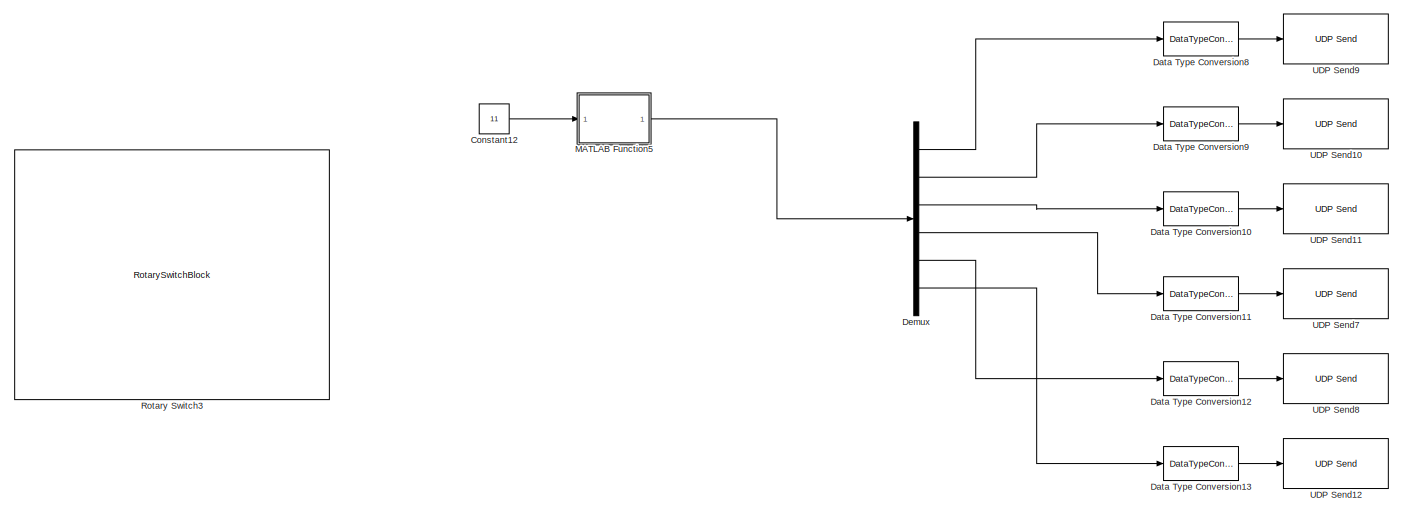
[diagram: root canvas - part 1/4, full width, top band]
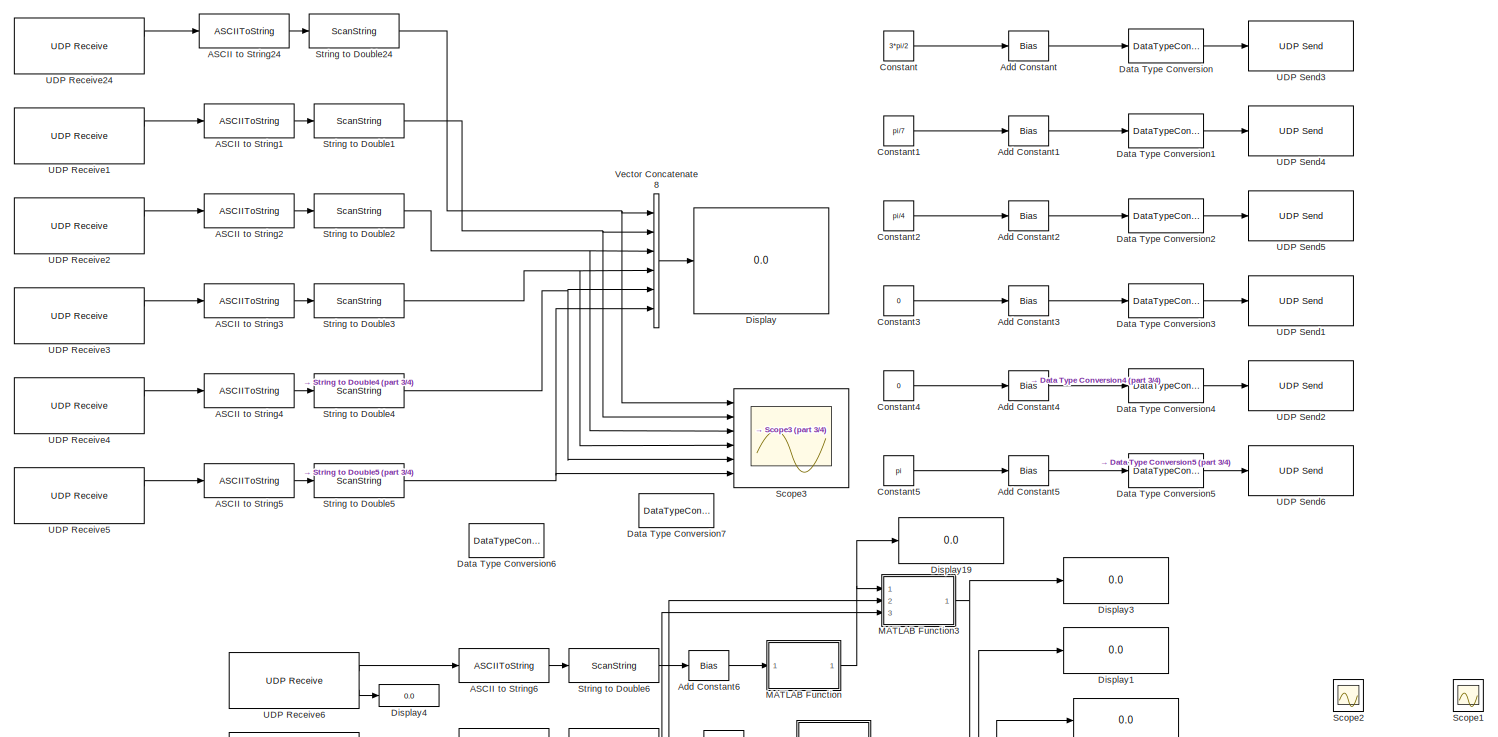
[diagram: root canvas - part 2/4, full width, middle band]
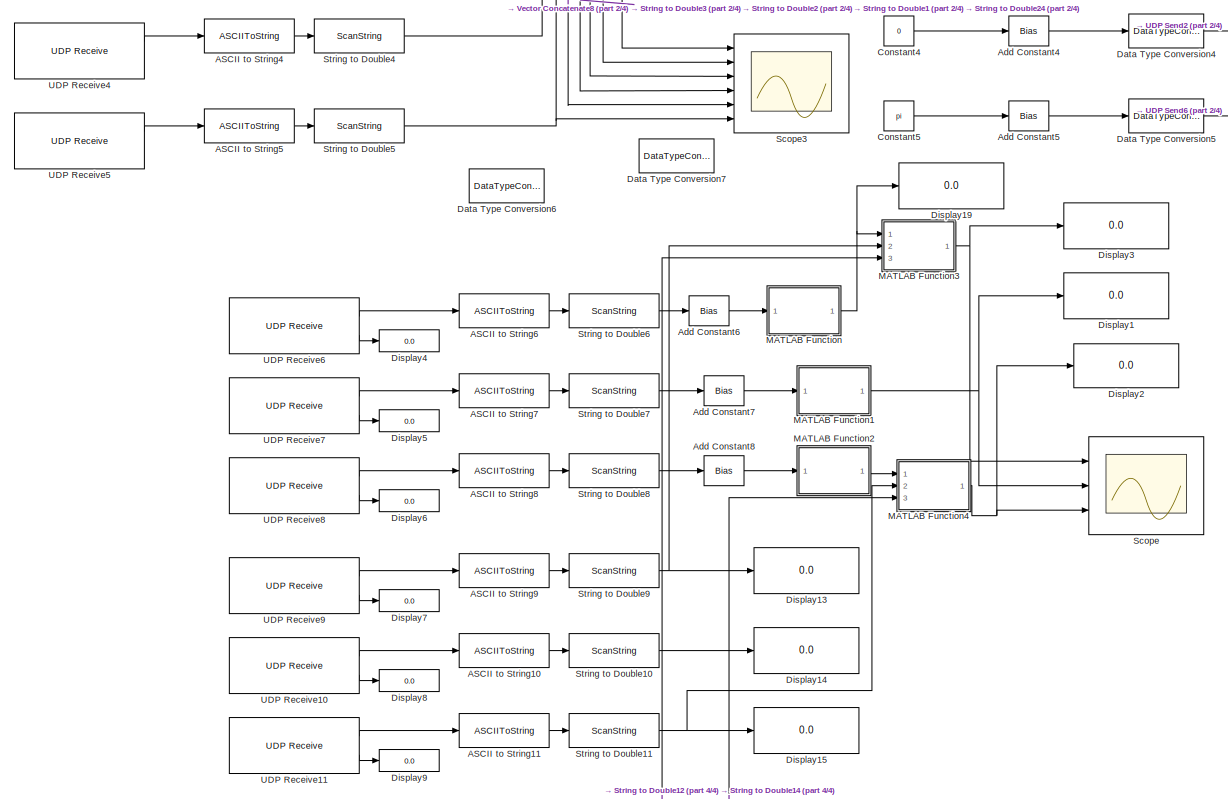
[diagram: root canvas - part 3/4, full width, middle band]
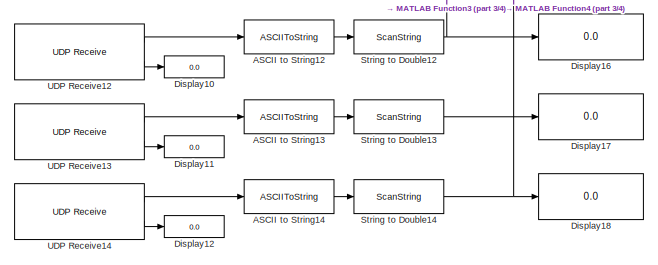
[diagram: root canvas - part 4/4, bottom center region]
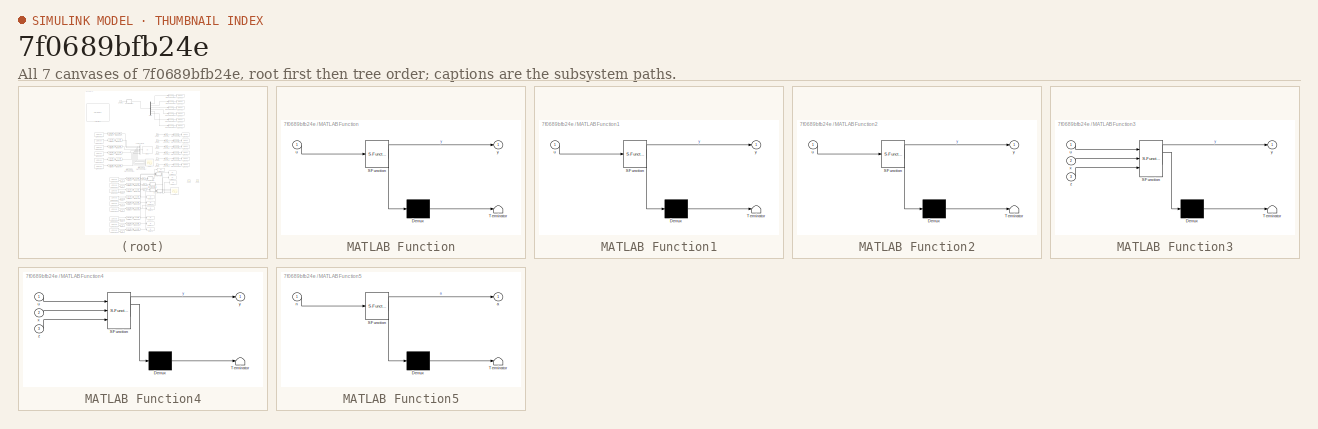
[diagram: thumbnail index - all 7 canvases of the model, root first then tree order]
MODEL slx_7f0689bfb24e
KIND model
CONFIG AbsTol = auto
CONFIG EnableMultiTasking = off
CONFIG FixedStep = auto
CONFIG MaxStep = auto
CONFIG MinStep = auto
CONFIG RelTol = 1e-3
CONFIG SampleTimeConstraint = Unconstrained
CONFIG Solver = VariableStepAuto
CONFIG SolverName = VariableStepAuto
CONFIG StartTime = 0.0
CONFIG StopTime = inf
BLOCK [ASCIIToString] ASCII to String1
BLOCK [ASCIIToString] ASCII to String10
BLOCK [ASCIIToString] ASCII to String11
BLOCK [ASCIIToString] ASCII to String12
BLOCK [ASCIIToString] ASCII to String13
BLOCK [ASCIIToString] ASCII to String14
BLOCK [ASCIIToString] ASCII to String2
BLOCK [ASCIIToString] ASCII to String24
BLOCK [ASCIIToString] ASCII to String3
BLOCK [ASCIIToString] ASCII to String4
BLOCK [ASCIIToString] ASCII to String5
BLOCK [ASCIIToString] ASCII to String6
BLOCK [ASCIIToString] ASCII to String7
BLOCK [ASCIIToString] ASCII to String8
BLOCK [ASCIIToString] ASCII to String9
BLOCK [Bias] Add Constant
  Commented = on
  SaturateOnIntegerOverflow = off
BLOCK [Bias] Add Constant1
  Commented = on
  SaturateOnIntegerOverflow = off
BLOCK [Bias] Add Constant2
  Commented = on
  SaturateOnIntegerOverflow = off
BLOCK [Bias] Add Constant3
  Commented = on
  SaturateOnIntegerOverflow = off
BLOCK [Bias] Add Constant4
  Commented = on
  SaturateOnIntegerOverflow = off
BLOCK [Bias] Add Constant5
  Commented = on
  SaturateOnIntegerOverflow = off
BLOCK [Bias] Add Constant6
  SaturateOnIntegerOverflow = off
BLOCK [Bias] Add Constant7
  SaturateOnIntegerOverflow = off
BLOCK [Bias] Add Constant8
  SaturateOnIntegerOverflow = off
BLOCK [Constant] Constant
  Commented = on
  Value = 3*pi/2
BLOCK [Constant] Constant1
  Commented = on
  Value = pi/7
BLOCK [Constant] Constant12
  Value = 11
BLOCK [Constant] Constant2
  Commented = on
  Value = pi/4
BLOCK [Constant] Constant3
  Commented = on
  Value = 0
BLOCK [Constant] Constant4
  Commented = on
  Value = 0
BLOCK [Constant] Constant5
  Commented = on
  Value = pi
BLOCK [DataTypeConversion] Data Type Conversion
  Commented = on
  ConvertRealWorld = Stored Integer (SI)
  OutDataTypeStr = double
  RndMeth = Floor
  SaturateOnIntegerOverflow = off
BLOCK [DataTypeConversion] Data Type Conversion1
  Commented = on
  ConvertRealWorld = Stored Integer (SI)
  OutDataTypeStr = double
  RndMeth = Floor
  SaturateOnIntegerOverflow = off
BLOCK [DataTypeConversion] Data Type Conversion10
  ConvertRealWorld = Stored Integer (SI)
  OutDataTypeStr = double
  RndMeth = Floor
  SaturateOnIntegerOverflow = off
BLOCK [DataTypeConversion] Data Type Conversion11
  ConvertRealWorld = Stored Integer (SI)
  OutDataTypeStr = double
  RndMeth = Floor
  SaturateOnIntegerOverflow = off
BLOCK [DataTypeConversion] Data Type Conversion12
  ConvertRealWorld = Stored Integer (SI)
  OutDataTypeStr = double
  RndMeth = Floor
  SaturateOnIntegerOverflow = off
BLOCK [DataTypeConversion] Data Type Conversion13
  ConvertRealWorld = Stored Integer (SI)
  OutDataTypeStr = double
  RndMeth = Floor
  SaturateOnIntegerOverflow = off
BLOCK [DataTypeConversion] Data Type Conversion2
  Commented = on
  ConvertRealWorld = Stored Integer (SI)
  OutDataTypeStr = double
  RndMeth = Floor
  SaturateOnIntegerOverflow = off
BLOCK [DataTypeConversion] Data Type Conversion3
  Commented = on
  ConvertRealWorld = Stored Integer (SI)
  OutDataTypeStr = double
  RndMeth = Floor
  SaturateOnIntegerOverflow = off
BLOCK [DataTypeConversion] Data Type Conversion4
  Commented = on
  ConvertRealWorld = Stored Integer (SI)
  OutDataTypeStr = double
  RndMeth = Floor
  SaturateOnIntegerOverflow = off
BLOCK [DataTypeConversion] Data Type Conversion5
  Commented = on
  ConvertRealWorld = Stored Integer (SI)
  OutDataTypeStr = double
  RndMeth = Floor
  SaturateOnIntegerOverflow = off
BLOCK [DataTypeConversion] Data Type Conversion6
  OutDataTypeStr = double
  RndMeth = Round
  SaturateOnIntegerOverflow = off
BLOCK [DataTypeConversion] Data Type Conversion7
  ConvertRealWorld = Stored Integer (SI)
  OutDataTypeStr = double
  RndMeth = Floor
  SaturateOnIntegerOverflow = off
BLOCK [DataTypeConversion] Data Type Conversion8
  ConvertRealWorld = Stored Integer (SI)
  OutDataTypeStr = double
  RndMeth = Floor
  SaturateOnIntegerOverflow = off
BLOCK [DataTypeConversion] Data Type Conversion9
  ConvertRealWorld = Stored Integer (SI)
  OutDataTypeStr = double
  RndMeth = Floor
  SaturateOnIntegerOverflow = off
BLOCK [Demux] Demux
  Outputs = 6
  Ports = [1, 6]
BLOCK [Display] Display
  Decimation = 1
  Ports = [1]
BLOCK [Display] Display1
  Decimation = 1
  Ports = [1]
BLOCK [Display] Display10
  Decimation = 1
  Format = bank
  Ports = [1]
BLOCK [Display] Display11
  Decimation = 1
  Format = bank
  Ports = [1]
BLOCK [Display] Display12
  Decimation = 1
  Format = bank
  Ports = [1]
BLOCK [Display] Display13
  Decimation = 1
  Ports = [1]
BLOCK [Display] Display14
  Decimation = 1
  Ports = [1]
BLOCK [Display] Display15
  Decimation = 1
  Ports = [1]
BLOCK [Display] Display16
  Decimation = 1
  Ports = [1]
BLOCK [Display] Display17
  Decimation = 1
  Ports = [1]
BLOCK [Display] Display18
  Decimation = 1
  Ports = [1]
BLOCK [Display] Display19
  Decimation = 1
  Ports = [1]
BLOCK [Display] Display2
  Decimation = 1
  Ports = [1]
BLOCK [Display] Display3
  Decimation = 1
  Ports = [1]
BLOCK [Display] Display4
  Decimation = 1
  Format = bank
  Ports = [1]
BLOCK [Display] Display5
  Decimation = 1
  Format = bank
  Ports = [1]
BLOCK [Display] Display6
  Decimation = 1
  Format = bank
  Ports = [1]
BLOCK [Display] Display7
  Decimation = 1
  Format = bank
  Ports = [1]
BLOCK [Display] Display8
  Decimation = 1
  Format = bank
  Ports = [1]
BLOCK [Display] Display9
  Decimation = 1
  Format = bank
  Ports = [1]
BLOCK [SubSystem] MATLAB Function
  ErrorFcn = Stateflow.Translate.translate
  PermitHierarchicalResolution = ExplicitOnly
  Ports = [1, 1]
  RequestExecContextInheritance = off
  SFBlockType = MATLAB Function
  TreatAsAtomicUnit = on
BLOCK [Demux] MATLAB Function/ Demux 
  Outputs = 1
  Ports = [1, 1]
BLOCK [S-Function] MATLAB Function/ SFunction 
  EnableBusSupport = on
  FunctionName = sf_sfun
  PortCounts = [1 2]
  Ports = [1, 2]
  SFcnIsStateOwnerBlock = off
  SFunctionDeploymentMode = off
  Tag = Stateflow S-Function 2
BLOCK [Terminator] MATLAB Function/ Terminator 
BLOCK [Inport] MATLAB Function/u
BLOCK [Outport] MATLAB Function/y
BLOCK [SubSystem] MATLAB Function1
  ErrorFcn = Stateflow.Translate.translate
  PermitHierarchicalResolution = ExplicitOnly
  Ports = [1, 1]
  RequestExecContextInheritance = off
  SFBlockType = MATLAB Function
  TreatAsAtomicUnit = on
BLOCK [Demux] MATLAB Function1/ Demux 
  Outputs = 1
  Ports = [1, 1]
BLOCK [S-Function] MATLAB Function1/ SFunction 
  EnableBusSupport = on
  FunctionName = sf_sfun
  PortCounts = [1 2]
  Ports = [1, 2]
  SFcnIsStateOwnerBlock = off
  SFunctionDeploymentMode = off
  Tag = Stateflow S-Function 1
BLOCK [Terminator] MATLAB Function1/ Terminator 
BLOCK [Inport] MATLAB Function1/u
BLOCK [Outport] MATLAB Function1/y
BLOCK [SubSystem] MATLAB Function2
  ErrorFcn = Stateflow.Translate.translate
  PermitHierarchicalResolution = ExplicitOnly
  Ports = [1, 1]
  RequestExecContextInheritance = off
  SFBlockType = MATLAB Function
  TreatAsAtomicUnit = on
BLOCK [Demux] MATLAB Function2/ Demux 
  Outputs = 1
  Ports = [1, 1]
BLOCK [S-Function] MATLAB Function2/ SFunction 
  EnableBusSupport = on
  FunctionName = sf_sfun
  PortCounts = [1 2]
  Ports = [1, 2]
  SFcnIsStateOwnerBlock = off
  SFunctionDeploymentMode = off
  Tag = Stateflow S-Function 3
BLOCK [Terminator] MATLAB Function2/ Terminator 
BLOCK [Inport] MATLAB Function2/u
BLOCK [Outport] MATLAB Function2/y
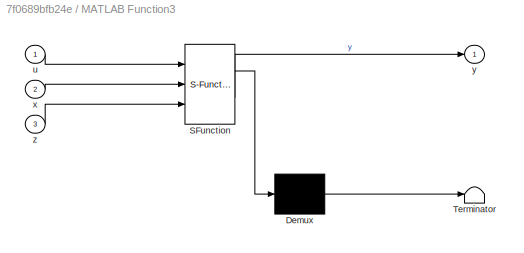
BLOCK [SubSystem] MATLAB Function3
  ErrorFcn = Stateflow.Translate.translate
  PermitHierarchicalResolution = ExplicitOnly
  Ports = [3, 1]
  RequestExecContextInheritance = off
  SFBlockType = MATLAB Function
  TreatAsAtomicUnit = on
BLOCK [Demux] MATLAB Function3/ Demux 
  Outputs = 1
  Ports = [1, 1]
BLOCK [S-Function] MATLAB Function3/ SFunction 
  EnableBusSupport = on
  FunctionName = sf_sfun
  PortCounts = [3 2]
  Ports = [3, 2]
  SFcnIsStateOwnerBlock = off
  SFunctionDeploymentMode = off
  Tag = Stateflow S-Function 4
BLOCK [Terminator] MATLAB Function3/ Terminator 
BLOCK [Inport] MATLAB Function3/u
BLOCK [Inport] MATLAB Function3/x
  Port = 2
BLOCK [Outport] MATLAB Function3/y
BLOCK [Inport] MATLAB Function3/z
  Port = 3
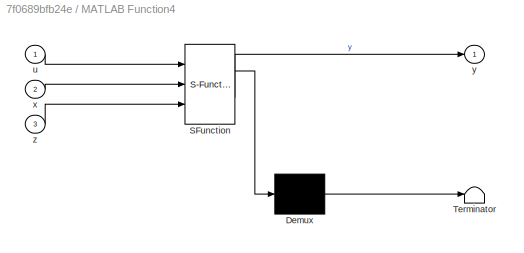
BLOCK [SubSystem] MATLAB Function4
  ErrorFcn = Stateflow.Translate.translate
  PermitHierarchicalResolution = ExplicitOnly
  Ports = [3, 1]
  RequestExecContextInheritance = off
  SFBlockType = MATLAB Function
  TreatAsAtomicUnit = on
BLOCK [Demux] MATLAB Function4/ Demux 
  Outputs = 1
  Ports = [1, 1]
BLOCK [S-Function] MATLAB Function4/ SFunction 
  EnableBusSupport = on
  FunctionName = sf_sfun
  PortCounts = [3 2]
  Ports = [3, 2]
  SFcnIsStateOwnerBlock = off
  SFunctionDeploymentMode = off
  Tag = Stateflow S-Function 5
BLOCK [Terminator] MATLAB Function4/ Terminator 
BLOCK [Inport] MATLAB Function4/u
BLOCK [Inport] MATLAB Function4/x
  Port = 2
BLOCK [Outport] MATLAB Function4/y
BLOCK [Inport] MATLAB Function4/z
  Port = 3
BLOCK [SubSystem] MATLAB Function5
  ErrorFcn = Stateflow.Translate.translate
  PermitHierarchicalResolution = ExplicitOnly
  Ports = [1, 1]
  RequestExecContextInheritance = off
  SFBlockType = MATLAB Function
  TreatAsAtomicUnit = on
BLOCK [Demux] MATLAB Function5/ Demux 
  Outputs = 1
  Ports = [1, 1]
BLOCK [S-Function] MATLAB Function5/ SFunction 
  EnableBusSupport = on
  FunctionName = sf_sfun
  PortCounts = [1 2]
  Ports = [1, 2]
  SFcnIsStateOwnerBlock = off
  SFunctionDeploymentMode = off
  Tag = Stateflow S-Function 6
BLOCK [Terminator] MATLAB Function5/ Terminator 
BLOCK [Outport] MATLAB Function5/a
BLOCK [Inport] MATLAB Function5/n
BLOCK [RotarySwitchBlock] Rotary Switch3
BLOCK [Scope] Scope
  Floating = off
  NumInputPorts = 3
  Ports = [3]
  ScopeSpecificationString = Simulink.scopes.TimeScopeBlockCfg('CurrentConfiguration', extmgr.ConfigurationSet(extmgr.Configuration('Core','General UI',true,'DisplayFullSourceName',true),extmgr.Configuration('Core','Source UI',true),extmgr.Configuration('Sources','WiredSimulink',true),extmgr.Configuration('Visuals','Time Domain',true,'SerializedDisplays',{struct('MinYLimReal','-1.53919','MaxYLimReal','1.28669','YLabelReal',''...<+1598ch>
BLOCK [Scope] Scope1
  Commented = on
  Floating = off
  NumInputPorts = 1
  Ports = [1]
  ScopeSpecificationString = Simulink.scopes.TimeScopeBlockCfg('CurrentConfiguration', extmgr.ConfigurationSet(extmgr.Configuration('Core','General UI',true),extmgr.Configuration('Core','Source UI',true),extmgr.Configuration('Sources','WiredSimulink',true,'DataLoggingVariableName','ScopeData1'),extmgr.Configuration('Visuals','Time Domain',true,'SerializedDisplays',{struct('MinYLimReal','-7.3667','MaxYLimReal','-5.3667','YLabe...<+1399ch>
BLOCK [Scope] Scope2
  Commented = on
  Floating = off
  NumInputPorts = 1
  Ports = [1]
  ScopeSpecificationString = Simulink.scopes.TimeScopeBlockCfg('CurrentConfiguration', extmgr.ConfigurationSet(extmgr.Configuration('Core','General UI',true),extmgr.Configuration('Core','Source UI',true),extmgr.Configuration('Sources','WiredSimulink',true,'DataLoggingVariableName','ScopeData2'),extmgr.Configuration('Visuals','Time Domain',true,'SerializedDisplays',{struct('MinYLimReal','-7.3667','MaxYLimReal','-5.3667','YLabe...<+1399ch>
BLOCK [Scope] Scope3
  Floating = off
  NumInputPorts = 6
  Ports = [6]
  ScopeSpecificationString = Simulink.scopes.TimeScopeBlockCfg('CurrentConfiguration', extmgr.ConfigurationSet(extmgr.Configuration('Core','General UI',true,'DisplayFullSourceName',true),extmgr.Configuration('Core','Source UI',true),extmgr.Configuration('Sources','WiredSimulink',true,'DataLoggingVariableName','ScopeData1'),extmgr.Configuration('Visuals','Time Domain',true,'SerializedDisplays',{struct('MinYLimReal','-0.78387',...<+1608ch>
BLOCK [ScanString] String to Double1
  Format = "%lf"
  Ports = [1, 1]
BLOCK [ScanString] String to Double10
  Format = "%lf"
  Ports = [1, 1]
BLOCK [ScanString] String to Double11
  Format = "%lf"
  Ports = [1, 1]
BLOCK [ScanString] String to Double12
  Format = "%lf"
  Ports = [1, 1]
BLOCK [ScanString] String to Double13
  Format = "%lf"
  Ports = [1, 1]
BLOCK [ScanString] String to Double14
  Format = "%lf"
  Ports = [1, 1]
BLOCK [ScanString] String to Double2
  Format = "%lf"
  Ports = [1, 1]
BLOCK [ScanString] String to Double24
  Format = "%lf"
  Ports = [1, 1]
BLOCK [ScanString] String to Double3
  Format = "%lf"
  Ports = [1, 1]
BLOCK [ScanString] String to Double4
  Format = "%lf"
  Ports = [1, 1]
BLOCK [ScanString] String to Double5
  Format = "%lf"
  Ports = [1, 1]
BLOCK [ScanString] String to Double6
  Format = "%lf"
  Ports = [1, 1]
BLOCK [ScanString] String to Double7
  Format = "%lf"
  Ports = [1, 1]
BLOCK [ScanString] String to Double8
  Format = "%lf"
  Ports = [1, 1]
BLOCK [ScanString] String to Double9
  Format = "%lf"
  Ports = [1, 1]
BLOCK [Reference] UDP Receive1  REF=instrumentlib/UDP Receive
  Ports = [0, 2]
  SourceBlock = instrumentlib/UDP Receive
  SourceProductBaseCode = IC
  SourceType = UDP Receive
BLOCK [Reference] UDP Receive10  REF=instrumentlib/UDP Receive
  Ports = [0, 2]
  SourceBlock = instrumentlib/UDP Receive
  SourceProductBaseCode = IC
  SourceType = UDP Receive
BLOCK [Reference] UDP Receive11  REF=instrumentlib/UDP Receive
  Ports = [0, 2]
  SourceBlock = instrumentlib/UDP Receive
  SourceProductBaseCode = IC
  SourceType = UDP Receive
BLOCK [Reference] UDP Receive12  REF=instrumentlib/UDP Receive
  Ports = [0, 2]
  SourceBlock = instrumentlib/UDP Receive
  SourceProductBaseCode = IC
  SourceType = UDP Receive
BLOCK [Reference] UDP Receive13  REF=instrumentlib/UDP Receive
  Ports = [0, 2]
  SourceBlock = instrumentlib/UDP Receive
  SourceProductBaseCode = IC
  SourceType = UDP Receive
BLOCK [Reference] UDP Receive14  REF=instrumentlib/UDP Receive
  Ports = [0, 2]
  SourceBlock = instrumentlib/UDP Receive
  SourceProductBaseCode = IC
  SourceType = UDP Receive
BLOCK [Reference] UDP Receive2  REF=instrumentlib/UDP Receive
  Ports = [0, 2]
  SourceBlock = instrumentlib/UDP Receive
  SourceProductBaseCode = IC
  SourceType = UDP Receive
BLOCK [Reference] UDP Receive24  REF=instrumentlib/UDP Receive
  Ports = [0, 2]
  SourceBlock = instrumentlib/UDP Receive
  SourceProductBaseCode = IC
  SourceType = UDP Receive
BLOCK [Reference] UDP Receive3  REF=instrumentlib/UDP Receive
  Ports = [0, 2]
  SourceBlock = instrumentlib/UDP Receive
  SourceProductBaseCode = IC
  SourceType = UDP Receive
BLOCK [Reference] UDP Receive4  REF=instrumentlib/UDP Receive
  Ports = [0, 2]
  SourceBlock = instrumentlib/UDP Receive
  SourceProductBaseCode = IC
  SourceType = UDP Receive
BLOCK [Reference] UDP Receive5  REF=instrumentlib/UDP Receive
  Ports = [0, 2]
  SourceBlock = instrumentlib/UDP Receive
  SourceProductBaseCode = IC
  SourceType = UDP Receive
BLOCK [Reference] UDP Receive6  REF=instrumentlib/UDP Receive
  Ports = [0, 2]
  SourceBlock = instrumentlib/UDP Receive
  SourceProductBaseCode = IC
  SourceType = UDP Receive
BLOCK [Reference] UDP Receive7  REF=instrumentlib/UDP Receive
  Ports = [0, 2]
  SourceBlock = instrumentlib/UDP Receive
  SourceProductBaseCode = IC
  SourceType = UDP Receive
BLOCK [Reference] UDP Receive8  REF=instrumentlib/UDP Receive
  Ports = [0, 2]
  SourceBlock = instrumentlib/UDP Receive
  SourceProductBaseCode = IC
  SourceType = UDP Receive
BLOCK [Reference] UDP Receive9  REF=instrumentlib/UDP Receive
  Ports = [0, 2]
  SourceBlock = instrumentlib/UDP Receive
  SourceProductBaseCode = IC
  SourceType = UDP Receive
BLOCK [Reference] UDP Send1  REF=dspnetwork/UDP Send
  Commented = on
  Ports = [1]
  SourceBlock = dspnetwork/UDP Send
  SourceProductBaseCode = SL
  SourceType = UDP Send
BLOCK [Reference] UDP Send10  REF=dspnetwork/UDP Send
  Ports = [1]
  SourceBlock = dspnetwork/UDP Send
  SourceProductBaseCode = SL
  SourceType = UDP Send
BLOCK [Reference] UDP Send11  REF=dspnetwork/UDP Send
  Ports = [1]
  SourceBlock = dspnetwork/UDP Send
  SourceProductBaseCode = SL
  SourceType = UDP Send
BLOCK [Reference] UDP Send12  REF=dspnetwork/UDP Send
  Ports = [1]
  SourceBlock = dspnetwork/UDP Send
  SourceProductBaseCode = SL
  SourceType = UDP Send
BLOCK [Reference] UDP Send2  REF=dspnetwork/UDP Send
  Commented = on
  Ports = [1]
  SourceBlock = dspnetwork/UDP Send
  SourceProductBaseCode = SL
  SourceType = UDP Send
BLOCK [Reference] UDP Send3  REF=dspnetwork/UDP Send
  Commented = on
  Ports = [1]
  SourceBlock = dspnetwork/UDP Send
  SourceProductBaseCode = SL
  SourceType = UDP Send
BLOCK [Reference] UDP Send4  REF=dspnetwork/UDP Send
  Commented = on
  Ports = [1]
  SourceBlock = dspnetwork/UDP Send
  SourceProductBaseCode = SL
  SourceType = UDP Send
BLOCK [Reference] UDP Send5  REF=dspnetwork/UDP Send
  Commented = on
  Ports = [1]
  SourceBlock = dspnetwork/UDP Send
  SourceProductBaseCode = SL
  SourceType = UDP Send
BLOCK [Reference] UDP Send6  REF=dspnetwork/UDP Send
  Commented = on
  Ports = [1]
  SourceBlock = dspnetwork/UDP Send
  SourceProductBaseCode = SL
  SourceType = UDP Send
BLOCK [Reference] UDP Send7  REF=dspnetwork/UDP Send
  Ports = [1]
  SourceBlock = dspnetwork/UDP Send
  SourceProductBaseCode = SL
  SourceType = UDP Send
BLOCK [Reference] UDP Send8  REF=dspnetwork/UDP Send
  Ports = [1]
  SourceBlock = dspnetwork/UDP Send
  SourceProductBaseCode = SL
  SourceType = UDP Send
BLOCK [Reference] UDP Send9  REF=dspnetwork/UDP Send
  Ports = [1]
  SourceBlock = dspnetwork/UDP Send
  SourceProductBaseCode = SL
  SourceType = UDP Send
BLOCK [Concatenate] Vector Concatenate8
  NumInputs = 6
  Ports = [6, 1]
LINE ASCII to String10:1 -> String to Double10:1
LINE ASCII to String11:1 -> String to Double11:1
LINE ASCII to String12:1 -> String to Double12:1
LINE ASCII to String13:1 -> String to Double13:1
LINE ASCII to String14:1 -> String to Double14:1
LINE ASCII to String1:1 -> String to Double1:1
LINE ASCII to String24:1 -> String to Double24:1
LINE ASCII to String2:1 -> String to Double2:1
LINE ASCII to String3:1 -> String to Double3:1
LINE ASCII to String4:1 -> String to Double4:1
LINE ASCII to String5:1 -> String to Double5:1
LINE ASCII to String6:1 -> String to Double6:1
LINE ASCII to String7:1 -> String to Double7:1
LINE ASCII to String8:1 -> String to Double8:1
LINE ASCII to String9:1 -> String to Double9:1
LINE Add Constant1:1 -> Data Type Conversion1:1
LINE Add Constant2:1 -> Data Type Conversion2:1
LINE Add Constant3:1 -> Data Type Conversion3:1
LINE Add Constant4:1 -> Data Type Conversion4:1
LINE Add Constant5:1 -> Data Type Conversion5:1
LINE Add Constant6:1 -> MATLAB Function:1
LINE Add Constant7:1 -> MATLAB Function1:1
LINE Add Constant8:1 -> MATLAB Function2:1
LINE Add Constant:1 -> Data Type Conversion:1
LINE Constant12:1 -> MATLAB Function5:1
LINE Constant1:1 -> Add Constant1:1
LINE Constant2:1 -> Add Constant2:1
LINE Constant3:1 -> Add Constant3:1
LINE Constant4:1 -> Add Constant4:1
LINE Constant5:1 -> Add Constant5:1
LINE Constant:1 -> Add Constant:1
LINE Data Type Conversion10:1 -> UDP Send11:1
LINE Data Type Conversion11:1 -> UDP Send7:1
LINE Data Type Conversion12:1 -> UDP Send8:1
LINE Data Type Conversion13:1 -> UDP Send12:1
LINE Data Type Conversion1:1 -> UDP Send4:1
LINE Data Type Conversion2:1 -> UDP Send5:1
LINE Data Type Conversion3:1 -> UDP Send1:1
LINE Data Type Conversion4:1 -> UDP Send2:1
LINE Data Type Conversion5:1 -> UDP Send6:1
LINE Data Type Conversion8:1 -> UDP Send9:1
LINE Data Type Conversion9:1 -> UDP Send10:1
LINE Data Type Conversion:1 -> UDP Send3:1
LINE Demux:1 -> Data Type Conversion8:1
LINE Demux:2 -> Data Type Conversion9:1
LINE Demux:3 -> Data Type Conversion10:1
LINE Demux:4 -> Data Type Conversion11:1
LINE Demux:5 -> Data Type Conversion12:1
LINE Demux:6 -> Data Type Conversion13:1
NET MATLAB Function1:1 -> Display1:1, Scope:2
LINE MATLAB Function2:1 -> MATLAB Function4:1
NET MATLAB Function3:1 -> Display3:1, Scope:1
NET MATLAB Function4:1 -> Display2:1, Scope:3
LINE MATLAB Function5:1 -> Demux:1
NET MATLAB Function:1 -> Display19:1, MATLAB Function3:1
LINE String to Double10:1 -> Display14:1
NET String to Double11:1 -> Display15:1, MATLAB Function4:2
NET String to Double12:1 -> Display16:1, MATLAB Function3:3
LINE String to Double13:1 -> Display17:1
NET String to Double14:1 -> Display18:1, MATLAB Function4:3
NET String to Double1:1 -> Scope3:2, Vector Concatenate8:2
NET String to Double24:1 -> Scope3:1, Vector Concatenate8:1
NET String to Double2:1 -> Scope3:3, Vector Concatenate8:3
NET String to Double3:1 -> Scope3:4, Vector Concatenate8:4
NET String to Double4:1 -> Scope3:5, Vector Concatenate8:5
NET String to Double5:1 -> Scope3:6, Vector Concatenate8:6
LINE String to Double6:1 -> Add Constant6:1
LINE String to Double7:1 -> Add Constant7:1
LINE String to Double8:1 -> Add Constant8:1
NET String to Double9:1 -> Display13:1, MATLAB Function3:2
LINE UDP Receive10:1 -> ASCII to String10:1
LINE UDP Receive10:2 -> Display8:1
LINE UDP Receive11:1 -> ASCII to String11:1
LINE UDP Receive11:2 -> Display9:1
LINE UDP Receive12:1 -> ASCII to String12:1
LINE UDP Receive12:2 -> Display10:1
LINE UDP Receive13:1 -> ASCII to String13:1
LINE UDP Receive13:2 -> Display11:1
LINE UDP Receive14:1 -> ASCII to String14:1
LINE UDP Receive14:2 -> Display12:1
LINE UDP Receive1:1 -> ASCII to String1:1
LINE UDP Receive24:1 -> ASCII to String24:1
LINE UDP Receive2:1 -> ASCII to String2:1
LINE UDP Receive3:1 -> ASCII to String3:1
LINE UDP Receive4:1 -> ASCII to String4:1
LINE UDP Receive5:1 -> ASCII to String5:1
LINE UDP Receive6:1 -> ASCII to String6:1
LINE UDP Receive6:2 -> Display4:1
LINE UDP Receive7:1 -> ASCII to String7:1
LINE UDP Receive7:2 -> Display5:1
LINE UDP Receive8:1 -> ASCII to String8:1
LINE UDP Receive8:2 -> Display6:1
LINE UDP Receive9:1 -> ASCII to String9:1
LINE UDP Receive9:2 -> Display7:1
LINE Vector Concatenate8:1 -> Display:1
note: NET lines group one-source signal fan-out (src -> all destinations, sorted); 1:1 wires keep LINE
CHART MATLAB Function states=1 transitions=1
  STATE_LABEL 'eML_blk_kernel()'
  STATE_LABEL "SCRIPT:\nfunction y = fcn(u)\n\nif u > 1\n    c = sprintf('%f', u);\n    y = str2double(c(2:6));\n    %disp(y);\nelse\n    y = u;\nend"
CHART MATLAB Function2 states=1 transitions=1
  STATE_LABEL 'eML_blk_kernel()'
  STATE_LABEL "SCRIPT:\nfunction y = fcn(u)\n\nif u > 1\n    c = sprintf('%f', u);\n    y = str2double(c(2:6));\n    disp(y);\nelse\n    y = u;\nend"
CHART MATLAB Function3 states=1 transitions=1
  STATE_LABEL 'eML_blk_kernel()'
  STATE_LABEL "SCRIPT:\nfunction y = fcn(u, x, z)\n\nif z == 1\n    if u < 1\n        %c = sprintf('%f', u);\n        y = x + u;\n        disp(y);\n    else\n        y = u;\n    end\nelse\n    y = u;\nend"
CHART MATLAB Function4 states=1 transitions=1
  STATE_LABEL 'eML_blk_kernel()'
  STATE_LABEL "SCRIPT:\nfunction y = fcn(u, x, z)\n\nif z == 1\n    if u < 1\n        %c = sprintf('%f', u);\n        y = x + u;\n        disp(y);\n    else\n        y = u;\n    end\nelse\n    y = u;\nend"
CHART MATLAB Function5 states=1 transitions=1
  STATE_LABEL 'eML_blk_kernel()'
  STATE_LABEL "SCRIPT:\nfunction a = Pos(n)\n% n = input('Enter a number: ');\n  \nswitch n\n  \n    case 11\n        a=[pi, pi,  pi, 0, 0, pi]; % up\n    case 21\n        a=[3*pi/2, pi/7, pi/4, 0, 0, pi]; % down\n    case 31\n        a=[pi/2, 3*pi/2, pi, 0, 0, pi]; % in\n    case 41\n        a=[pi/2, pi/2, pi, 0, 0,  pi]; % out\n    case 51\n        a=[pi, 3*pi/2, pi, 0, 0, pi]; % left\n    case 61\n        a=[pi, pi/2, pi, 0, ...<+501ch>"
CHART MATLAB Function1 states=1 transitions=1
  STATE_LABEL 'eML_blk_kernel()'
  STATE_LABEL "SCRIPT:\nfunction y = fcn(u)\n\nif u > 10\n    c = sprintf('%f', u);\n    y = str2double(c(2:6));\n    disp(y);\nelse\n    y = u;\nend"
CHART  states=0 transitions=0
CHART  states=0 transitions=0
CHART  states=0 transitions=0
CHART  states=0 transitions=0
CHART  states=0 transitions=0
CHART  states=0 transitions=0
